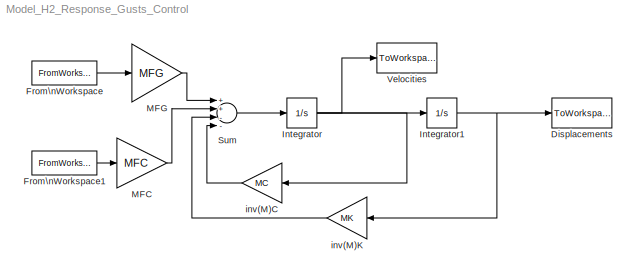
MODEL Model_H2_Response_Gusts_Control
KIND model
BLOCK [ToWorkspace] Displacements
  MaxDataPoints = inf
  SampleTime = dt
  SaveFormat = Array
  VariableName = EoutG1
BLOCK [FromWorkspace] From\nWorkspace
  SampleTime = dt
  VariableName = Egust
BLOCK [FromWorkspace] From\nWorkspace1
  SampleTime = dt
  VariableName = Econtrol
BLOCK [Integrator] Integrator
  IgnoreLimit = off
  Ports = [1, 1]
BLOCK [Integrator] Integrator1
  IgnoreLimit = off
  Ports = [1, 1]
BLOCK [Gain] MFC
  Gain = MFC
  Multiplication = Matrix(K*u) (u vector)
BLOCK [Gain] MFG
  Gain = MFG
  Multiplication = Matrix(K*u) (u vector)
BLOCK [Sum] Sum
  InputSameDT = off
  Inputs = ++--
  OutDataTypeMode = Inherit via internal rule
  Ports = [4, 1]
BLOCK [ToWorkspace] Velocities
  MaxDataPoints = inf
  SampleTime = dt
  SaveFormat = Array
  VariableName = EoutG2
BLOCK [Gain] inv(M)C
  Gain = MC
  Multiplication = Matrix(K*u)
BLOCK [Gain] inv(M)K
  Gain = MK
  Multiplication = Matrix(K*u)
LINE From\nWorkspace1:1 -> MFC:1
LINE From\nWorkspace:1 -> MFG:1
NET Integrator1:1 -> Displacements:1, inv(M)K:1
NET Integrator:1 -> Integrator1:1, Velocities:1, inv(M)C:1
LINE MFC:1 -> Sum:2
LINE MFG:1 -> Sum:1
LINE Sum:1 -> Integrator:1
LINE inv(M)C:1 -> Sum:4
LINE inv(M)K:1 -> Sum:3
note: NET lines group one-source signal fan-out (src -> all destinations, sorted); 1:1 wires keep LINE
